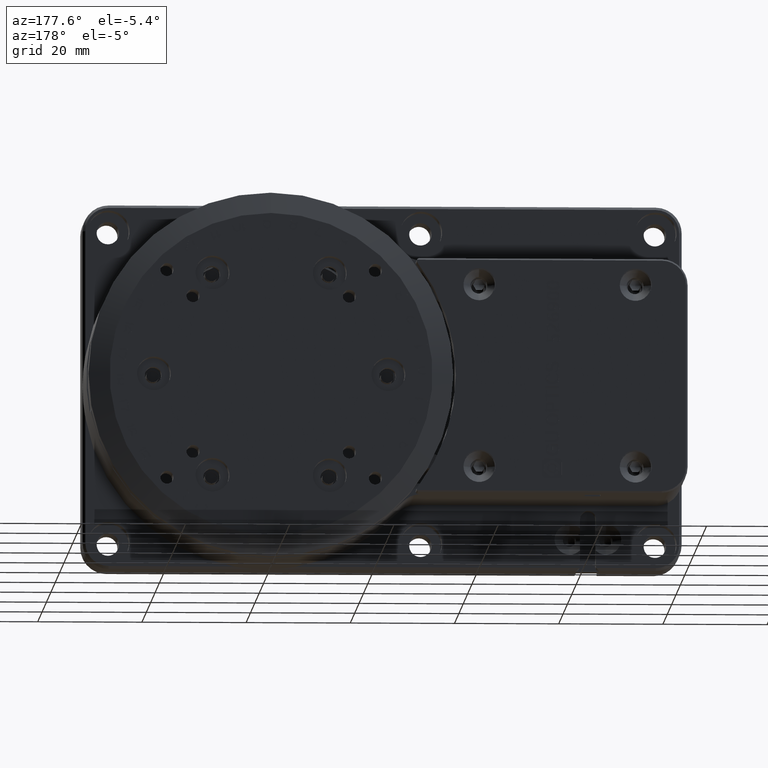
[diagram: clean part render]
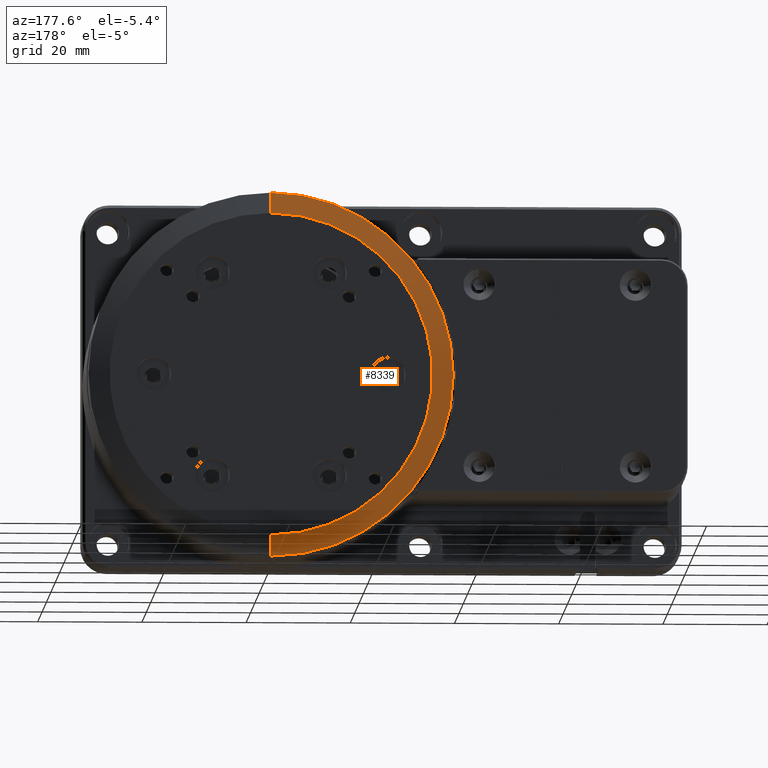
[diagram: same view with one face highlighted and labeled with its STEP entity id]
A machine part, auxiliary view. The second image highlights one B-rep face of the part: STEP entity #8339.
In plain terms, the highlighted conical surface has half-angle 75.964 deg.
Its self-contained STEP definition (entity closure, byte-faithful):
#30 = CARTESIAN_POINT ( 'NONE',  ( 4.286263869922596600E-015, 13.39999827159955900, 34.99999969126732700 ) ) ;
#8287 = EDGE_CURVE ( 'NONE', #69726, #18318, #70209, .T. ) ;
#8339 = ADVANCED_FACE ( 'NONE', ( #49642 ), #14366, .T. ) ;
#11130 = EDGE_CURVE ( 'NONE', #69726, #20594, #34662, .T. ) ;
#11378 = DIRECTION ( 'NONE',  ( -2.478176416112409500E-017, -1.000000000000000000, 9.826173359001190500E-033 ) ) ;
#14366 = CONICAL_SURFACE ( 'NONE', #58354, 34.99999969126735500, 1.325817615114253100 ) ;
#14481 = VERTEX_POINT ( 'NONE', #30993 ) ;
#14852 = CIRCLE ( 'NONE', #36551, 34.99999969126735500 ) ;
#18318 = VERTEX_POINT ( 'NONE', #30 ) ;
#20294 = CARTESIAN_POINT ( 'NONE',  ( 2.081668171172168500E-014, 14.40000000000000400, -30.99999360308111200 ) ) ;
#20594 = VERTEX_POINT ( 'NONE', #20294 ) ;
#20674 = AXIS2_PLACEMENT_3D ( 'NONE', #48920, #11378, #55213 ) ;
#29022 = CARTESIAN_POINT ( 'NONE',  ( 2.081668171172168500E-014, 13.39999827159955900, -2.561847293528999500E-014 ) ) ;
#30993 = CARTESIAN_POINT ( 'NONE',  ( 2.081668171172168500E-014, 13.39999827159955900, -34.99999969126738400 ) ) ;
#34662 = CIRCLE ( 'NONE', #20674, 30.99999360308108700 ) ;
#35303 = DIRECTION ( 'NONE',  ( 0.0000000000000000000, 0.0000000000000000000, -1.000000000000000000 ) ) ;
#36551 = AXIS2_PLACEMENT_3D ( 'NONE', #29022, #72833, #35303 ) ;
#37001 = VECTOR ( 'NONE', #66209, 1000.000000000000200 ) ;
#38333 = CARTESIAN_POINT ( 'NONE',  ( 2.485801573830521600E-014, 14.40000000000000400, 30.99999360308106600 ) ) ;
#39012 = LINE ( 'NONE', #47635, #37001 ) ;
#42692 = ORIENTED_EDGE ( 'NONE', *, *, #11130, .T. ) ;
#42886 = ORIENTED_EDGE ( 'NONE', *, *, #8287, .F. ) ;
#44648 = EDGE_LOOP ( 'NONE', ( #42886, #42692, #77456, #49346 ) ) ;
#46113 = EDGE_CURVE ( 'NONE', #20594, #14481, #39012, .T. ) ;
#47635 = CARTESIAN_POINT ( 'NONE',  ( 2.081668171172168500E-014, 13.39999827159955900, -34.99999969126738400 ) ) ;
#48920 = CARTESIAN_POINT ( 'NONE',  ( 2.084146351871562200E-014, 14.40000000000000400, -2.428612866367529900E-014 ) ) ;
#49346 = ORIENTED_EDGE ( 'NONE', *, *, #67395, .T. ) ;
#49642 = FACE_OUTER_BOUND ( 'NONE', #44648, .T. ) ;
#53599 = VECTOR ( 'NONE', #56765, 1000.000000000000200 ) ;
#54729 = DIRECTION ( 'NONE',  ( 0.0000000000000000000, -1.000000000000000000, 0.0000000000000000000 ) ) ;
#54907 = CARTESIAN_POINT ( 'NONE',  ( 2.081668171172168500E-014, 13.39999827159955900, -2.428612866367529900E-014 ) ) ;
#55009 = DIRECTION ( 'NONE',  ( 0.0000000000000000000, 0.0000000000000000000, -1.000000000000000000 ) ) ;
#55213 = DIRECTION ( 'NONE',  ( 1.000000000000000000, 0.0000000000000000000, 0.0000000000000000000 ) ) ;
#56765 = DIRECTION ( 'NONE',  ( 1.188081893098323100E-016, -0.2425356721404175700, 0.9701424883693095000 ) ) ;
#57340 = CARTESIAN_POINT ( 'NONE',  ( 2.510294547092857700E-014, 13.39999827159955900, 34.99999969126732700 ) ) ;
#58354 = AXIS2_PLACEMENT_3D ( 'NONE', #54907, #54729, #55009 ) ;
#66209 = DIRECTION ( 'NONE',  ( 0.0000000000000000000, -0.2425356721404175700, -0.9701424883693095000 ) ) ;
#67395 = EDGE_CURVE ( 'NONE', #14481, #18318, #14852, .T. ) ;
#69726 = VERTEX_POINT ( 'NONE', #38333 ) ;
#70209 = LINE ( 'NONE', #57340, #53599 ) ;
#72833 = DIRECTION ( 'NONE',  ( -0.0000000000000000000, 1.000000000000000000, -0.0000000000000000000 ) ) ;
#77456 = ORIENTED_EDGE ( 'NONE', *, *, #46113, .T. ) ;